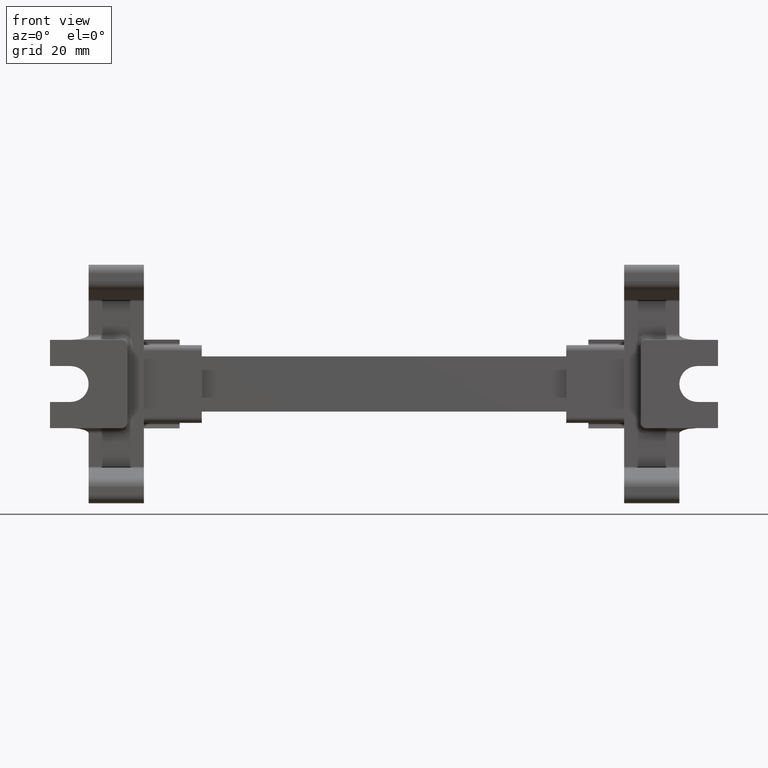
[diagram: clean part render]
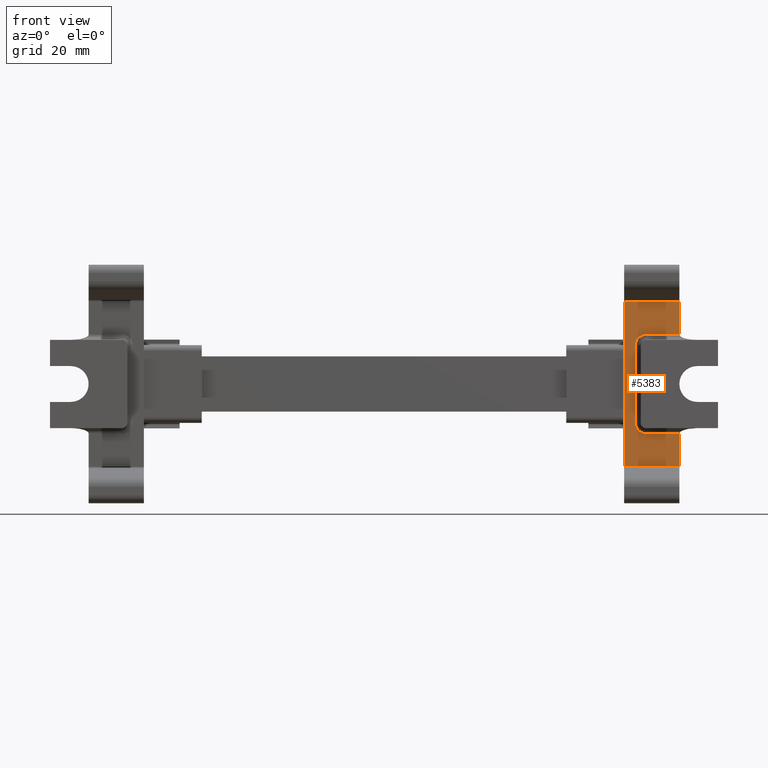
[diagram: same view with one face highlighted and labeled with its STEP entity id]
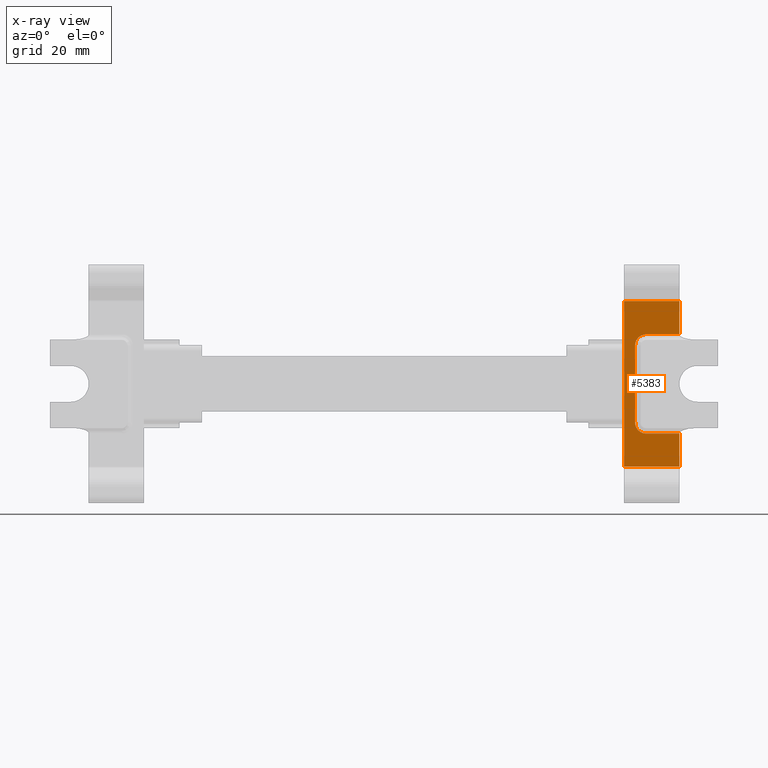
[diagram: x-ray of the same camera — body ghosted, the highlighted face saturated]
A machine part, front view. The second image highlights one B-rep face of the part: STEP entity #5383.
The next image is the same camera in x-ray: the body ghosted, the highlighted face saturated — about 0% of this face is hidden behind the body in this view.
In plain terms, the highlighted planar face has unit normal (-0, -1, -0).
Its self-contained STEP definition (entity closure, byte-faithful):
#234 = VECTOR ( 'NONE', #6849, 1000.000000000000000 ) ;
#242 = VECTOR ( 'NONE', #6947, 1000.000000000000000 ) ;
#628 = VECTOR ( 'NONE', #6113, 1000.000000000000000 ) ;
#747 = VECTOR ( 'NONE', #6473, 1000.000000000000000 ) ;
#778 = VECTOR ( 'NONE', #6446, 1000.000000000000000 ) ;
#791 = VECTOR ( 'NONE', #6488, 1000.000000000000000 ) ;
#1423 = ORIENTED_EDGE ( 'NONE', *, *, #1989, .T. ) ;
#1428 = ORIENTED_EDGE ( 'NONE', *, *, #2085, .T. ) ;
#1433 = ORIENTED_EDGE ( 'NONE', *, *, #18578, .T. ) ;
#1436 = ORIENTED_EDGE ( 'NONE', *, *, #2093, .T. ) ;
#1440 = ORIENTED_EDGE ( 'NONE', *, *, #2389, .T. ) ;
#1442 = ORIENTED_EDGE ( 'NONE', *, *, #1986, .T. ) ;
#1444 = ORIENTED_EDGE ( 'NONE', *, *, #2083, .T. ) ;
#1463 = ORIENTED_EDGE ( 'NONE', *, *, #2076, .T. ) ;
#1465 = ORIENTED_EDGE ( 'NONE', *, *, #2416, .T. ) ;
#1471 = ORIENTED_EDGE ( 'NONE', *, *, #9696, .T. ) ;
#1986 = EDGE_CURVE ( 'NONE', #2950, #2996, #6128, .T. ) ;
#1989 = EDGE_CURVE ( 'NONE', #2976, #2929, #8325, .T. ) ;
#2076 = EDGE_CURVE ( 'NONE', #2922, #2959, #6413, .T. ) ;
#2083 = EDGE_CURVE ( 'NONE', #2974, #2976, #6438, .T. ) ;
#2085 = EDGE_CURVE ( 'NONE', #2996, #2974, #8327, .T. ) ;
#2093 = EDGE_CURVE ( 'NONE', #2959, #3002, #6521, .T. ) ;
#2389 = EDGE_CURVE ( 'NONE', #2941, #2922, #6837, .T. ) ;
#2416 = EDGE_CURVE ( 'NONE', #2929, #2978, #6943, .T. ) ;
#2922 = VERTEX_POINT ( 'NONE', #8272 ) ;
#2929 = VERTEX_POINT ( 'NONE', #8288 ) ;
#2941 = VERTEX_POINT ( 'NONE', #8306 ) ;
#2950 = VERTEX_POINT ( 'NONE', #8331 ) ;
#2959 = VERTEX_POINT ( 'NONE', #8299 ) ;
#2974 = VERTEX_POINT ( 'NONE', #8311 ) ;
#2976 = VERTEX_POINT ( 'NONE', #8275 ) ;
#2978 = VERTEX_POINT ( 'NONE', #8300 ) ;
#2996 = VERTEX_POINT ( 'NONE', #8417 ) ;
#3002 = VERTEX_POINT ( 'NONE', #8371 ) ;
#5211 = EDGE_LOOP ( 'NONE', ( #1440, #1463, #1436, #1433, #1442, #1428, #1444, #1423, #1465, #1471 ) ) ;
#5383 = ADVANCED_FACE ( 'NONE', ( #9918 ), #9940, .T. ) ;
#6108 = CARTESIAN_POINT ( 'NONE',  ( 37.43812751195525100, 43.96882648293770000, 46.29579620301098000 ) ) ;
#6109 = CARTESIAN_POINT ( 'NONE',  ( 37.73056935672652700, 43.96882648293767900, 46.58839556358166300 ) ) ;
#6113 = DIRECTION ( 'NONE',  ( -1.000000000000000000, 7.897574987183420400E-015, -0.0000000000000000000 ) ) ;
#6118 = CARTESIAN_POINT ( 'NONE',  ( 37.16526712526250300, 43.96882648293769300, 45.75358437573307000 ) ) ;
#6119 = CARTESIAN_POINT ( 'NONE',  ( 38.20034925418338600, 43.96882648293768600, 46.88912032210673400 ) ) ;
#6122 = CARTESIAN_POINT ( 'NONE',  ( 38.24745555180126600, 43.96882648293768600, 46.90985448139564800 ) ) ;
#6127 = CARTESIAN_POINT ( 'NONE',  ( 37.88843283582554700, 43.96882648293769300, 46.71721578369330500 ) ) ;
#6128 = LINE ( 'NONE', #6144, #628 ) ;
#6129 = CARTESIAN_POINT ( 'NONE',  ( 37.04736979277775100, 43.96882648293770800, 45.20389262284343300 ) ) ;
#6132 = CARTESIAN_POINT ( 'NONE',  ( 38.27910230347804800, 43.96882648293768600, 46.92331309883464000 ) ) ;
#6135 = CARTESIAN_POINT ( 'NONE',  ( 37.06497333396355000, 43.96882648293770800, 45.39134910660266100 ) ) ;
#6140 = CARTESIAN_POINT ( 'NONE',  ( 38.09298136902270900, 43.96882648293767200, 46.83691698518624900 ) ) ;
#6141 = CARTESIAN_POINT ( 'NONE',  ( 37.11613983817555600, 43.96882648293770800, 45.60408236194307800 ) ) ;
#6142 = CARTESIAN_POINT ( 'NONE',  ( 38.29636608786746200, 43.96882648293769300, 46.93038295613157400 ) ) ;
#6144 = CARTESIAN_POINT ( 'NONE',  ( 35.04730230417582200, 43.96882648293771500, 29.07865108636482500 ) ) ;
#6151 = CARTESIAN_POINT ( 'NONE',  ( 37.14938035015536100, 43.96882648293771500, 45.70895749568527600 ) ) ;
#6154 = CARTESIAN_POINT ( 'NONE',  ( 37.04730230417585100, 43.96882648293768600, 45.07664888101836500 ) ) ;
#6156 = CARTESIAN_POINT ( 'NONE',  ( 37.17622294008984300, 43.96882648293771500, 45.78326460557789800 ) ) ;
#6157 = CARTESIAN_POINT ( 'NONE',  ( 37.18138502682836600, 43.96882648293770000, 45.79680999215158000 ) ) ;
#6158 = CARTESIAN_POINT ( 'NONE',  ( 37.28917650561341900, 43.96882648293771500, 46.06929122799113700 ) ) ;
#6169 = CARTESIAN_POINT ( 'NONE',  ( 39.04730230417583700, 43.96882648293766500, 47.07664888101835000 ) ) ;
#6184 = CARTESIAN_POINT ( 'NONE',  ( 38.79245811304793500, 43.96882648293768600, 47.07651371462107200 ) ) ;
#6185 = CARTESIAN_POINT ( 'NONE',  ( 38.54706164000670300, 43.96882648293769300, 47.02970591532934500 ) ) ;
#6413 = LINE ( 'NONE', #6416, #778 ) ;
#6416 = CARTESIAN_POINT ( 'NONE',  ( 35.04730230417580800, 43.96882648293771500, 49.54146295254220400 ) ) ;
#6434 = CARTESIAN_POINT ( 'NONE',  ( 38.05465995720777500, 43.96882648293770800, 29.32052528779682600 ) ) ;
#6436 = CARTESIAN_POINT ( 'NONE',  ( 37.53555562160794800, 43.96882648293770000, 29.76191813892054900 ) ) ;
#6437 = CARTESIAN_POINT ( 'NONE',  ( 37.40673540149285300, 43.96882648293769300, 29.91978161802331800 ) ) ;
#6438 = LINE ( 'NONE', #6470, #747 ) ;
#6439 = CARTESIAN_POINT ( 'NONE',  ( 37.28703420000191900, 43.96882648293769300, 30.12433015121828500 ) ) ;
#6444 = CARTESIAN_POINT ( 'NONE',  ( 38.37036680946317800, 43.96882648293768600, 29.19661590745145200 ) ) ;
#6445 = CARTESIAN_POINT ( 'NONE',  ( 37.23483086308396400, 43.96882648293770000, 30.23169803637621600 ) ) ;
#6446 = DIRECTION ( 'NONE',  ( 2.265165414331192000E-043, 2.868178419334055400E-029, -1.000000000000000000 ) ) ;
#6448 = CARTESIAN_POINT ( 'NONE',  ( 37.21409670379645000, 43.96882648293769300, 30.27880433399255700 ) ) ;
#6449 = CARTESIAN_POINT ( 'NONE',  ( 37.20063808635846000, 43.96882648293770000, 30.31045108566822300 ) ) ;
#6451 = CARTESIAN_POINT ( 'NONE',  ( 37.19356822906264200, 43.96882648293768600, 30.32771487005565800 ) ) ;
#6453 = CARTESIAN_POINT ( 'NONE',  ( 37.09424526986484200, 43.96882648293770800, 30.57841042220776700 ) ) ;
#6454 = CARTESIAN_POINT ( 'NONE',  ( 37.04743747057312900, 43.96882648293770800, 30.82380689524902500 ) ) ;
#6458 = CARTESIAN_POINT ( 'NONE',  ( 38.73260207859916400, 43.96882648293769300, 29.09632211615251400 ) ) ;
#6459 = CARTESIAN_POINT ( 'NONE',  ( 37.82815498219245900, 43.96882648293771500, 29.46947629413412200 ) ) ;
#6463 = CARTESIAN_POINT ( 'NONE',  ( 37.04730230417585800, 43.96882648293769300, 31.07865108636482500 ) ) ;
#6466 = CARTESIAN_POINT ( 'NONE',  ( 38.51986882325683600, 43.96882648293767900, 29.14748862036448100 ) ) ;
#6468 = CARTESIAN_POINT ( 'NONE',  ( 38.41499368951227900, 43.96882648293768600, 29.18072913234429300 ) ) ;
#6469 = CARTESIAN_POINT ( 'NONE',  ( 38.34068657961742600, 43.96882648293770000, 29.20757172227878900 ) ) ;
#6470 = CARTESIAN_POINT ( 'NONE',  ( 37.04730230417585800, 43.96882648293770000, 49.54146295254220400 ) ) ;
#6473 = DIRECTION ( 'NONE',  ( -2.265165414331192000E-043, -2.868178419334055400E-029, 1.000000000000000000 ) ) ;
#6480 = CARTESIAN_POINT ( 'NONE',  ( 39.04730230417585800, 43.96882648293766500, 29.07865108636482900 ) ) ;
#6481 = CARTESIAN_POINT ( 'NONE',  ( 38.92005856235515200, 43.96882648293765800, 29.07871857496671100 ) ) ;
#6482 = CARTESIAN_POINT ( 'NONE',  ( 38.32714119304238700, 43.96882648293770000, 29.21273380901766400 ) ) ;
#6488 = DIRECTION ( 'NONE',  ( 1.000000000000000000, -7.897574987183420400E-015, 0.0000000000000000000 ) ) ;
#6517 = CARTESIAN_POINT ( 'NONE',  ( 35.04730230417582200, 43.96882648293771500, 23.07587375111845800 ) ) ;
#6521 = LINE ( 'NONE', #6517, #791 ) ;
#6837 = LINE ( 'NONE', #6860, #234 ) ;
#6849 = DIRECTION ( 'NONE',  ( -1.000000000000000000, 7.897574987183420400E-015, -0.0000000000000000000 ) ) ;
#6860 = CARTESIAN_POINT ( 'NONE',  ( 35.04730230417582200, 43.96882648293771500, 53.07942621626467900 ) ) ;
#6918 = CARTESIAN_POINT ( 'NONE',  ( 35.04730230417582200, 43.96882648293771500, 47.07664888101834300 ) ) ;
#6943 = LINE ( 'NONE', #6918, #242 ) ;
#6947 = DIRECTION ( 'NONE',  ( 1.000000000000000000, -7.897574987183420400E-015, 0.0000000000000000000 ) ) ;
#8272 = CARTESIAN_POINT ( 'NONE',  ( 35.04730230417581500, 43.96882648293771500, 53.07942621626468600 ) ) ;
#8275 = CARTESIAN_POINT ( 'NONE',  ( 37.04730230417585100, 43.96882648293768600, 45.07664888101836500 ) ) ;
#8288 = CARTESIAN_POINT ( 'NONE',  ( 39.04730230417583700, 43.96882648293766500, 47.07664888101835000 ) ) ;
#8299 = CARTESIAN_POINT ( 'NONE',  ( 35.04730230417587200, 43.96882648293771500, 23.07587375111845400 ) ) ;
#8300 = CARTESIAN_POINT ( 'NONE',  ( 45.04730230417573700, 43.96882648293763700, 47.07664888101834300 ) ) ;
#8306 = CARTESIAN_POINT ( 'NONE',  ( 45.04730230417582200, 43.96882648293763700, 53.07942621626468600 ) ) ;
#8311 = CARTESIAN_POINT ( 'NONE',  ( 37.04730230417585800, 43.96882648293769300, 31.07865108636482500 ) ) ;
#8325 = B_SPLINE_CURVE_WITH_KNOTS ( 'NONE', 3,
 ( #6154, #6129, #6135, #6141, #6151, #6118, #6156, #6157, #6158, #6108, #6109, #6127, #6140, #6119, #6122, #6132, #6142, #6185, #6184, #6169 ),
 .UNSPECIFIED., .F., .F.,
 ( 4, 1, 1, 1, 2, 2, 2, 1, 1, 1, 2, 2, 4 ),
 ( 0.0000000000000000000, 0.1250000000000341100, 0.1875000000000477400, 0.2187500000000546000, 0.2343750000000579800, 0.2500000000000614000, 0.5000000000000715000, 0.6250000000000742700, 0.6875000000000757200, 0.7187500000000736100, 0.7343750000000696100, 0.7500000000000656100, 1.000000000000000000 ),
 .UNSPECIFIED. ) ;
#8327 = B_SPLINE_CURVE_WITH_KNOTS ( 'NONE', 3,
 ( #6480, #6481, #6458, #6466, #6468, #6444, #6469, #6482, #6434, #6459, #6436, #6437, #6439, #6445, #6448, #6449, #6451, #6453, #6454, #6463 ),
 .UNSPECIFIED., .F., .F.,
 ( 4, 1, 1, 1, 2, 2, 2, 1, 1, 1, 2, 2, 4 ),
 ( 0.0000000000000000000, 0.1249999999999758500, 0.1874999999999634500, 0.2187499999999539500, 0.2343749999999497300, 0.2499999999999455200, 0.4999999999999612500, 0.6249999999999680300, 0.6874999999999701400, 0.7187499999999725800, 0.7343749999999738000, 0.7499999999999750200, 1.000000000000000000 ),
 .UNSPECIFIED. ) ;
#8331 = CARTESIAN_POINT ( 'NONE',  ( 45.04730230417582200, 43.96882648293763700, 29.07865108636482500 ) ) ;
#8371 = CARTESIAN_POINT ( 'NONE',  ( 45.04730230417591500, 43.96882648293763700, 23.07587375111847500 ) ) ;
#8417 = CARTESIAN_POINT ( 'NONE',  ( 39.04730230417585800, 43.96882648293766500, 29.07865108636482900 ) ) ;
#9696 = EDGE_CURVE ( 'NONE', #2978, #2941, #11844, .T. ) ;
#9918 = FACE_OUTER_BOUND ( 'NONE', #5211, .T. ) ;
#9919 = DIRECTION ( 'NONE',  ( -7.897574987183420400E-015, -1.000000000000000000, -2.868178419334055400E-029 ) ) ;
#9936 = DIRECTION ( 'NONE',  ( 1.000000000000000000, -7.897574987183420400E-015, 0.0000000000000000000 ) ) ;
#9940 = PLANE ( 'NONE',  #17520 ) ;
#9944 = CARTESIAN_POINT ( 'NONE',  ( 35.04730230417582200, 43.96882648293771500, 49.54146295254220400 ) ) ;
#10339 = VECTOR ( 'NONE', #14681, 1000.000000000000000 ) ;
#11844 = LINE ( 'NONE', #11899, #18067 ) ;
#11899 = CARTESIAN_POINT ( 'NONE',  ( 45.04730230417584400, 43.96882648293763700, 49.54146295254220400 ) ) ;
#11909 = DIRECTION ( 'NONE',  ( -2.265165414331192000E-043, -2.868178419334055400E-029, 1.000000000000000000 ) ) ;
#14681 = DIRECTION ( 'NONE',  ( -2.265165414331192000E-043, -2.868178419334055400E-029, 1.000000000000000000 ) ) ;
#14700 = CARTESIAN_POINT ( 'NONE',  ( 45.04730230417590800, 43.96882648293763700, 49.54146295254220400 ) ) ;
#14706 = LINE ( 'NONE', #14700, #10339 ) ;
#17520 = AXIS2_PLACEMENT_3D ( 'NONE', #9944, #9919, #9936 ) ;
#18067 = VECTOR ( 'NONE', #11909, 1000.000000000000000 ) ;
#18578 = EDGE_CURVE ( 'NONE', #3002, #2950, #14706, .T. ) ;